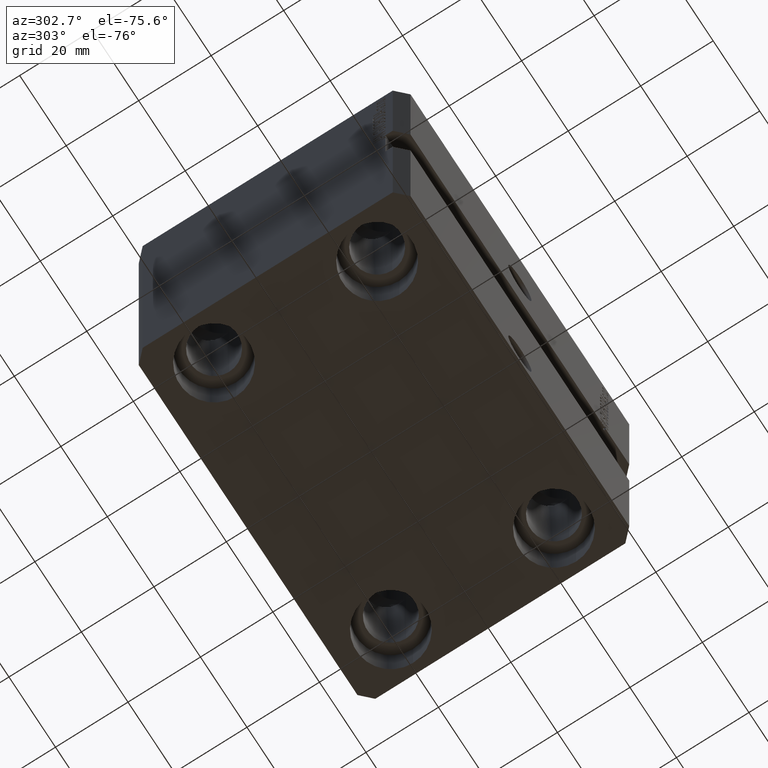
[diagram: clean part render]
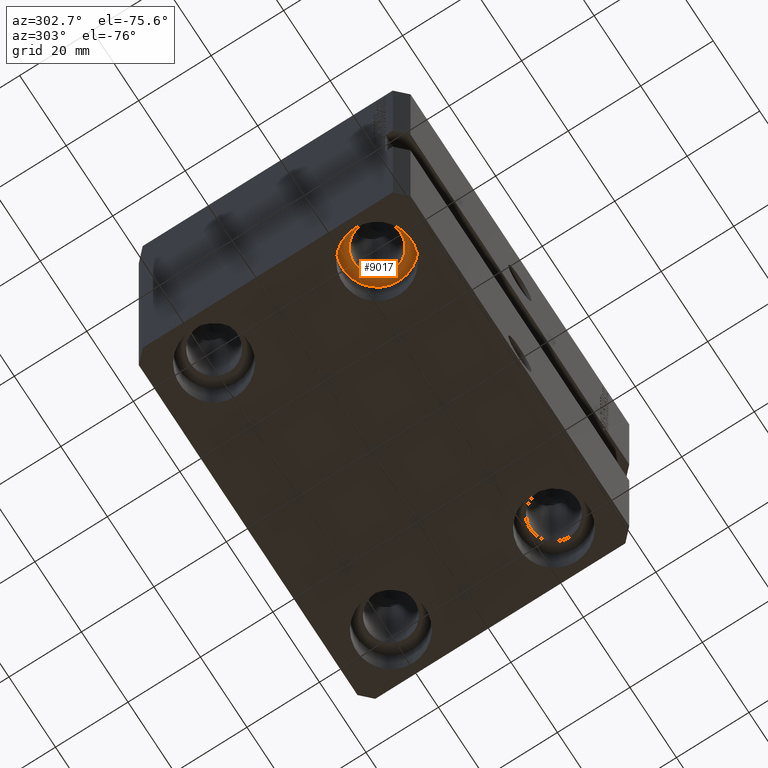
[diagram: same view with one face highlighted and labeled with its STEP entity id]
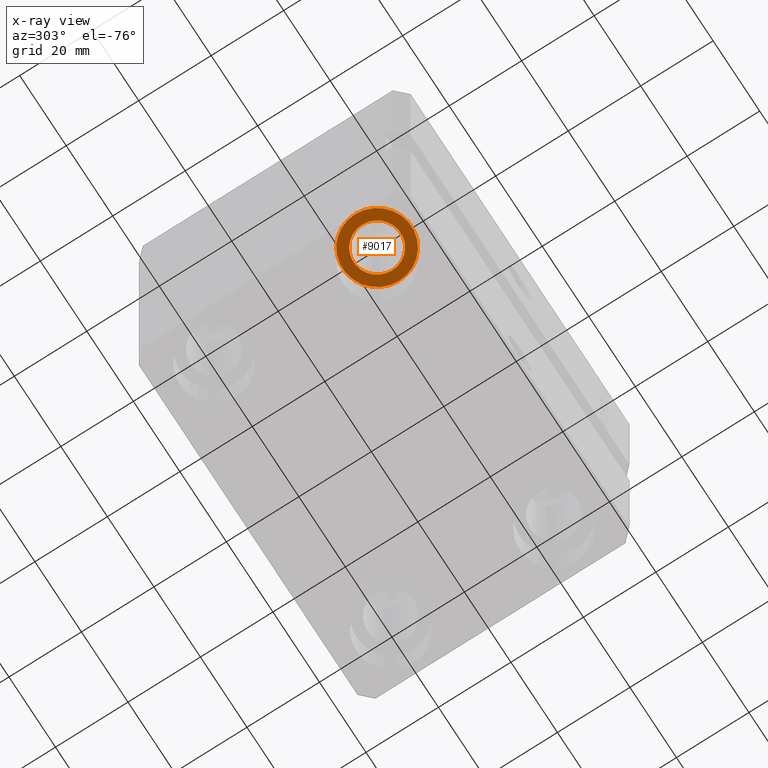
[diagram: x-ray of the same camera — body ghosted, the highlighted face saturated]
A machine part, auxiliary view. The second image highlights one B-rep face of the part: STEP entity #9017.
The next image is the same camera in x-ray: the body ghosted, the highlighted face saturated — about 0% of this face is hidden behind the body in this view.
In plain terms, the highlighted planar face has unit normal (0, 0, -1).
Its self-contained STEP definition (entity closure, byte-faithful):
#68 = AXIS2_PLACEMENT_3D ( 'NONE', #40144, #30157, #5180 ) ;
#1190 = DIRECTION ( 'NONE',  ( 1.000000000000000000, 0.000000000000000000, 0.000000000000000000 ) ) ;
#2071 = ORIENTED_EDGE ( 'NONE', *, *, #43364, .F. ) ;
#2782 = AXIS2_PLACEMENT_3D ( 'NONE', #26709, #26933, #6472 ) ;
#3100 = CARTESIAN_POINT ( 'NONE',  ( -47.50000000000000711, -22.50000000000000000, -82.00000000000000000 ) ) ;
#3183 = VERTEX_POINT ( 'NONE', #3100 ) ;
#4159 = VERTEX_POINT ( 'NONE', #30573 ) ;
#4822 = DIRECTION ( 'NONE',  ( -0.000000000000000000, -0.000000000000000000, 1.000000000000000000 ) ) ;
#5180 = DIRECTION ( 'NONE',  ( 1.000000000000000000, 0.000000000000000000, 0.000000000000000000 ) ) ;
#6472 = DIRECTION ( 'NONE',  ( -1.000000000000000000, 0.000000000000000000, 0.000000000000000000 ) ) ;
#6707 = CIRCLE ( 'NONE', #35713, 9.500000000000001776 ) ;
#9017 = ADVANCED_FACE ( 'NONE', ( #26308, #16277 ), #29926, .T. ) ;
#9331 = EDGE_LOOP ( 'NONE', ( #26339, #2071 ) ) ;
#11241 = EDGE_LOOP ( 'NONE', ( #37428, #30272 ) ) ;
#12194 = EDGE_CURVE ( 'NONE', #3183, #21391, #42966, .T. ) ;
#13921 = AXIS2_PLACEMENT_3D ( 'NONE', #19272, #36325, #36776 ) ;
#14681 = EDGE_CURVE ( 'NONE', #21391, #3183, #6707, .T. ) ;
#16277 = FACE_OUTER_BOUND ( 'NONE', #11241, .T. ) ;
#17903 = AXIS2_PLACEMENT_3D ( 'NONE', #37115, #44166, #26901 ) ;
#19272 = CARTESIAN_POINT ( 'NONE',  ( -38.00000000000000711, -22.50000000000000000, -82.00000000000000000 ) ) ;
#21391 = VERTEX_POINT ( 'NONE', #36930 ) ;
#26308 = FACE_BOUND ( 'NONE', #9331, .T. ) ;
#26339 = ORIENTED_EDGE ( 'NONE', *, *, #39880, .F. ) ;
#26709 = CARTESIAN_POINT ( 'NONE',  ( -38.00000000000000711, -22.50000000000000000, -82.00000000000000000 ) ) ;
#26901 = DIRECTION ( 'NONE',  ( -1.000000000000000000, 0.000000000000000000, 0.000000000000000000 ) ) ;
#26933 = DIRECTION ( 'NONE',  ( 0.000000000000000000, 0.000000000000000000, -1.000000000000000000 ) ) ;
#29349 = CARTESIAN_POINT ( 'NONE',  ( -38.00000000000000711, -22.50000000000000000, -82.00000000000000000 ) ) ;
#29926 = PLANE ( 'NONE',  #68 ) ;
#30157 = DIRECTION ( 'NONE',  ( 0.000000000000000000, 0.000000000000000000, -1.000000000000000000 ) ) ;
#30272 = ORIENTED_EDGE ( 'NONE', *, *, #14681, .F. ) ;
#30573 = CARTESIAN_POINT ( 'NONE',  ( -44.50000000000000711, -22.50000000000000000, -82.00000000000000000 ) ) ;
#35441 = CIRCLE ( 'NONE', #2782, 6.499999999999999112 ) ;
#35713 = AXIS2_PLACEMENT_3D ( 'NONE', #29349, #4822, #1190 ) ;
#36325 = DIRECTION ( 'NONE',  ( -0.000000000000000000, -0.000000000000000000, 1.000000000000000000 ) ) ;
#36776 = DIRECTION ( 'NONE',  ( 1.000000000000000000, 0.000000000000000000, 0.000000000000000000 ) ) ;
#36930 = CARTESIAN_POINT ( 'NONE',  ( -28.50000000000000355, -22.50000000000000000, -82.00000000000000000 ) ) ;
#37115 = CARTESIAN_POINT ( 'NONE',  ( -38.00000000000000711, -22.50000000000000000, -82.00000000000000000 ) ) ;
#37428 = ORIENTED_EDGE ( 'NONE', *, *, #12194, .F. ) ;
#39880 = EDGE_CURVE ( 'NONE', #40628, #4159, #44787, .T. ) ;
#40144 = CARTESIAN_POINT ( 'NONE',  ( -38.00000000000000711, -22.50000000000000000, -82.00000000000000000 ) ) ;
#40628 = VERTEX_POINT ( 'NONE', #43947 ) ;
#42966 = CIRCLE ( 'NONE', #13921, 9.500000000000001776 ) ;
#43364 = EDGE_CURVE ( 'NONE', #4159, #40628, #35441, .T. ) ;
#43947 = CARTESIAN_POINT ( 'NONE',  ( -31.50000000000000711, -22.50000000000000000, -82.00000000000000000 ) ) ;
#44166 = DIRECTION ( 'NONE',  ( 0.000000000000000000, 0.000000000000000000, -1.000000000000000000 ) ) ;
#44787 = CIRCLE ( 'NONE', #17903, 6.499999999999999112 ) ;